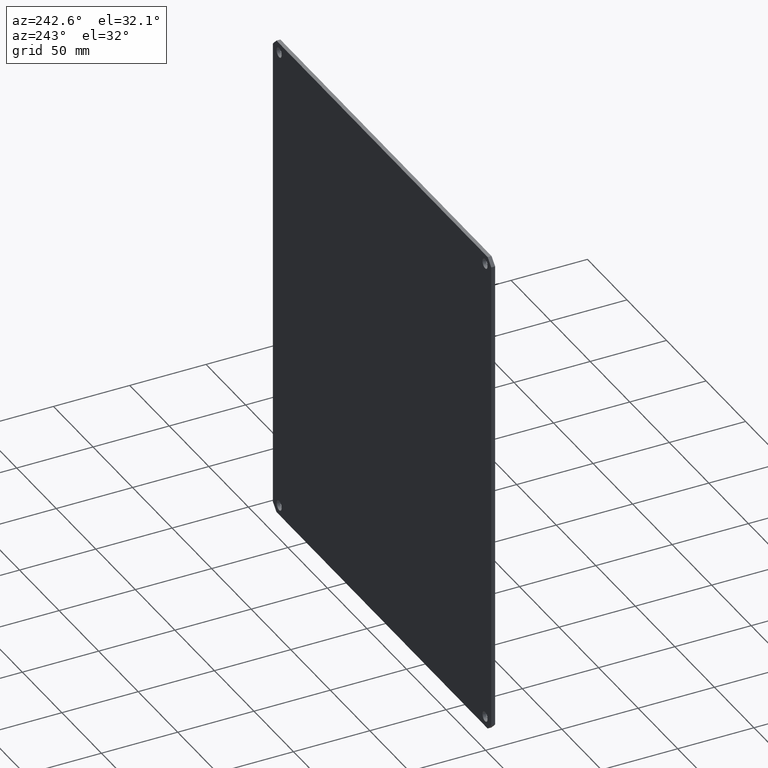
[diagram: clean part render]
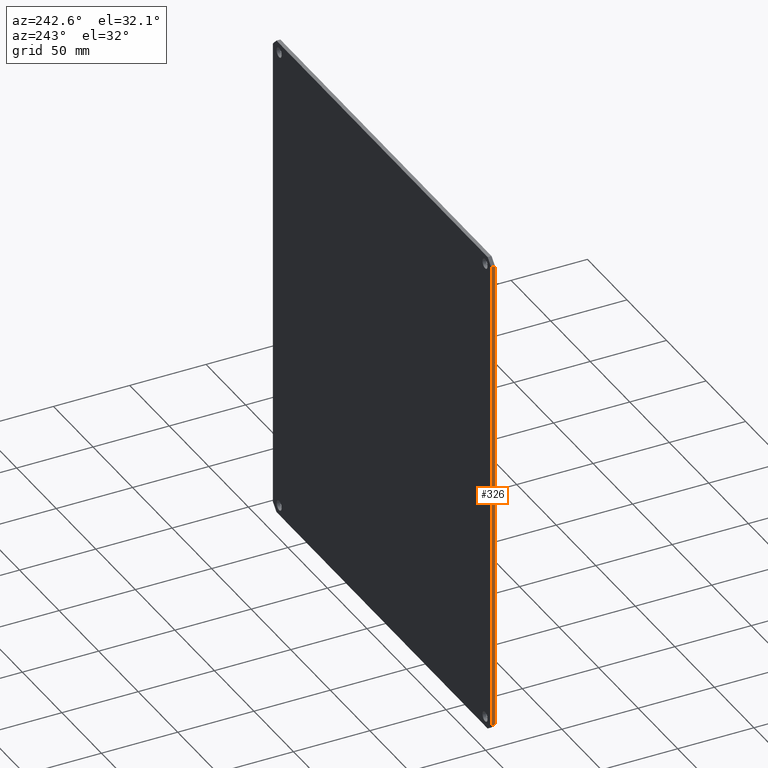
[diagram: same view with one face highlighted and labeled with its STEP entity id]
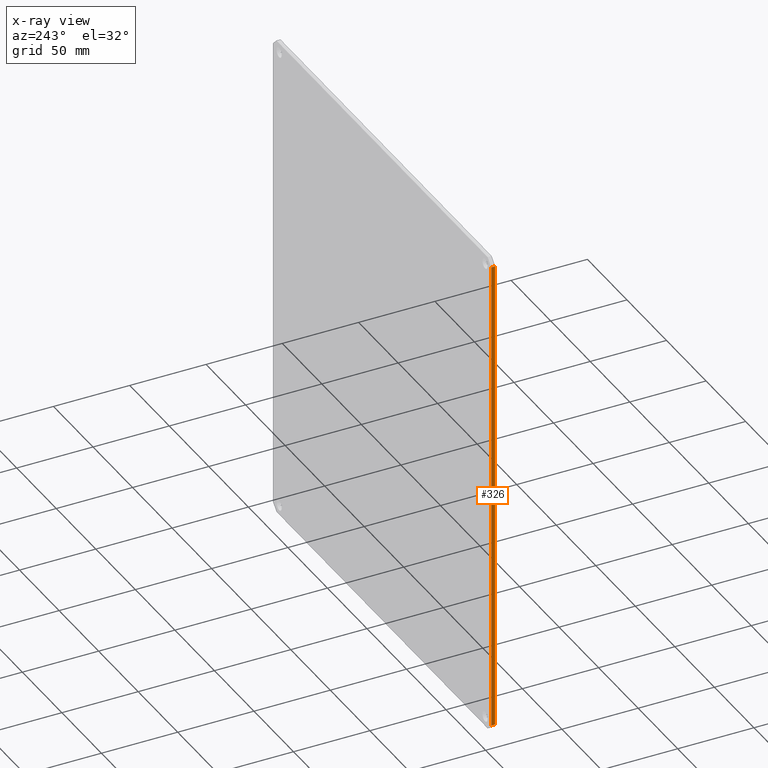
[diagram: x-ray of the same camera — body ghosted, the highlighted face saturated]
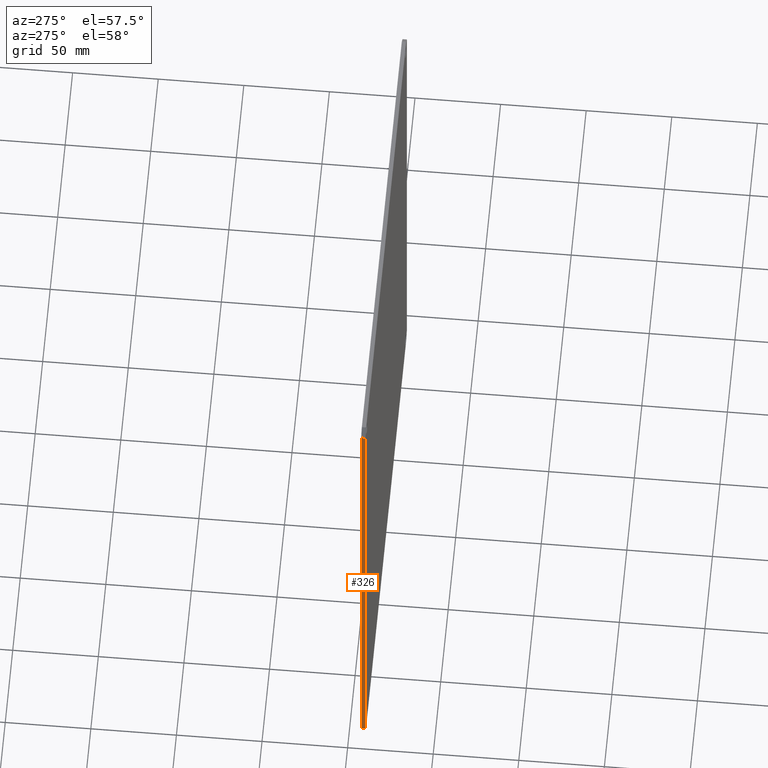
[diagram: same view with one face highlighted and labeled with its STEP entity id]
A machine part, auxiliary view. The second image highlights one B-rep face of the part: STEP entity #326.
The next image is the same camera in x-ray: the body ghosted, the highlighted face saturated — about 0% of this face is hidden behind the body in this view.
A second angle (auxiliary view) of the same face is appended — the face is thin or edge-on in the first view.
In plain terms, the highlighted planar face has unit normal (-1, 0, 0).
Its self-contained STEP definition (entity closure, byte-faithful):
#20 = FACE_OUTER_BOUND ( 'NONE', #484, .T. ) ;
#33 = ORIENTED_EDGE ( 'NONE', *, *, #223, .F. ) ;
#71 = VECTOR ( 'NONE', #490, 39.37007874015748100 ) ;
#119 = CARTESIAN_POINT ( 'NONE',  ( -11.53814778627970700, -8.261220590614481600, 3.037902669980989200 ) ) ;
#133 = CARTESIAN_POINT ( 'NONE',  ( -11.53814778627970700, -8.261220590614481600, -9.352097330019008200 ) ) ;
#135 = VERTEX_POINT ( 'NONE', #133 ) ;
#162 = DIRECTION ( 'NONE',  ( 0.0000000000000000000, 1.000000000000000000, 0.0000000000000000000 ) ) ;
#174 = LINE ( 'NONE', #119, #584 ) ;
#223 = EDGE_CURVE ( 'NONE', #612, #572, #637, .T. ) ;
#225 = DIRECTION ( 'NONE',  ( 0.0000000000000000000, -1.000000000000000000, 0.0000000000000000000 ) ) ;
#234 = DIRECTION ( 'NONE',  ( 8.570503509534944300E-017, 0.0000000000000000000, 1.000000000000000000 ) ) ;
#238 = LINE ( 'NONE', #565, #627 ) ;
#263 = EDGE_CURVE ( 'NONE', #135, #535, #621, .T. ) ;
#271 = EDGE_CURVE ( 'NONE', #535, #572, #174, .T. ) ;
#274 = CARTESIAN_POINT ( 'NONE',  ( -11.53814778627970700, -8.161220590614481900, -9.532097330019011500 ) ) ;
#326 = ADVANCED_FACE ( 'NONE', ( #20 ), #449, .T. ) ;
#335 = DIRECTION ( 'NONE',  ( 8.570503509534944300E-017, 0.0000000000000000000, 1.000000000000000000 ) ) ;
#346 = CARTESIAN_POINT ( 'NONE',  ( -11.53814778627970700, -8.261220590614481600, -9.532097330019011500 ) ) ;
#356 = CARTESIAN_POINT ( 'NONE',  ( -11.53814778627970700, -8.161220590614481900, -9.352097330019008200 ) ) ;
#406 = CARTESIAN_POINT ( 'NONE',  ( -11.53814778627970700, -8.261220590614481600, 3.037902669980989200 ) ) ;
#441 = DIRECTION ( 'NONE',  ( -1.000000000000000000, 0.0000000000000000000, 8.570503509534944300E-017 ) ) ;
#449 = PLANE ( 'NONE',  #460 ) ;
#456 = CARTESIAN_POINT ( 'NONE',  ( -11.53814778627970700, -8.161220590614481900, 3.037902669980989200 ) ) ;
#460 = AXIS2_PLACEMENT_3D ( 'NONE', #346, #441, #234 ) ;
#477 = EDGE_CURVE ( 'NONE', #612, #135, #238, .T. ) ;
#484 = EDGE_LOOP ( 'NONE', ( #605, #593, #33, #528 ) ) ;
#490 = DIRECTION ( 'NONE',  ( 8.570503509534944300E-017, 0.0000000000000000000, 1.000000000000000000 ) ) ;
#528 = ORIENTED_EDGE ( 'NONE', *, *, #477, .T. ) ;
#535 = VERTEX_POINT ( 'NONE', #406 ) ;
#565 = CARTESIAN_POINT ( 'NONE',  ( -11.53814778627970700, -8.261220590614481600, -9.352097330019008200 ) ) ;
#572 = VERTEX_POINT ( 'NONE', #456 ) ;
#584 = VECTOR ( 'NONE', #162, 39.37007874015748100 ) ;
#593 = ORIENTED_EDGE ( 'NONE', *, *, #271, .T. ) ;
#603 = VECTOR ( 'NONE', #335, 39.37007874015748100 ) ;
#605 = ORIENTED_EDGE ( 'NONE', *, *, #263, .T. ) ;
#612 = VERTEX_POINT ( 'NONE', #356 ) ;
#621 = LINE ( 'NONE', #643, #603 ) ;
#627 = VECTOR ( 'NONE', #225, 39.37007874015748100 ) ;
#637 = LINE ( 'NONE', #274, #71 ) ;
#643 = CARTESIAN_POINT ( 'NONE',  ( -11.53814778627970700, -8.261220590614481600, -9.532097330019011500 ) ) ;